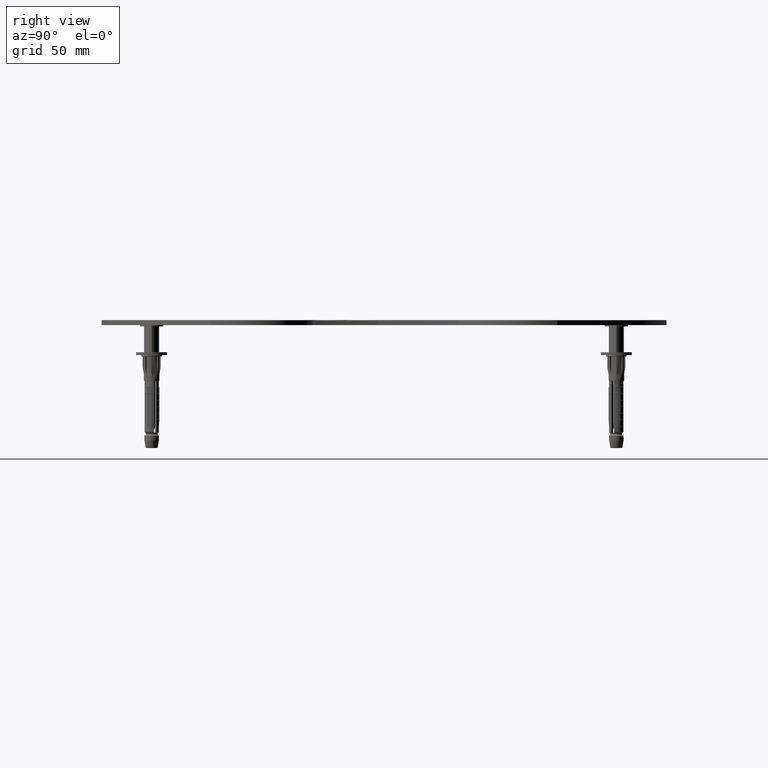
[diagram: clean part render]
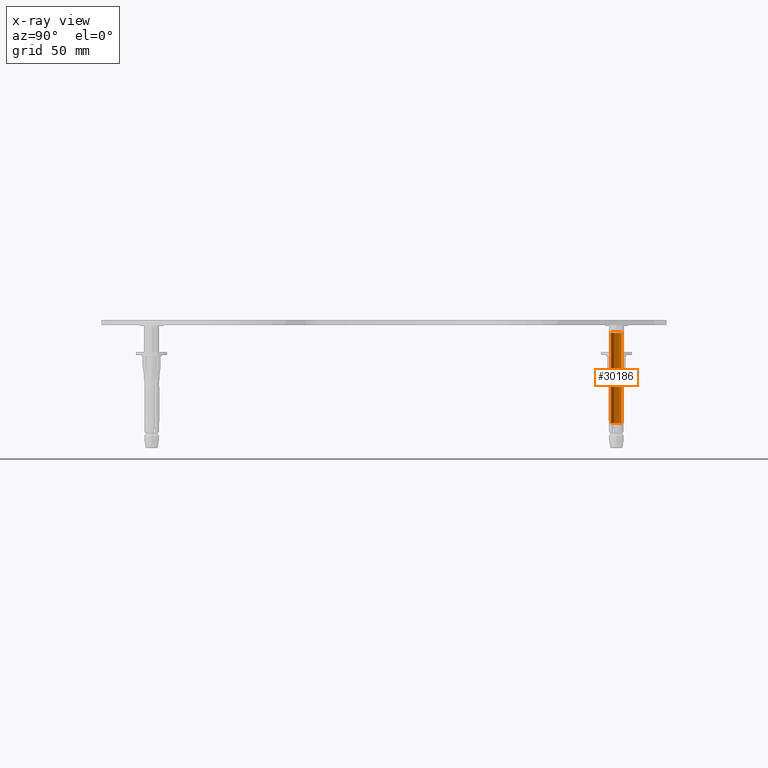
[diagram: x-ray — body ghosted, one internal face saturated and labeled with its STEP entity id]
A machine part, right view, then the same camera in x-ray: the body is ghosted and one INTERNAL B-rep face — a face not visible from any outside direction — is saturated and labeled: STEP entity #30186.
In plain terms, the highlighted cylindrical surface (edge-blend (fillet) strip) has radius 2 mm, axis along (-0, 0, -1).
Its self-contained STEP definition (entity closure, byte-faithful):
#144 = FACE_OUTER_BOUND ( 'NONE', #28852, .T. ) ;
#582 = CYLINDRICAL_SURFACE ( 'NONE', #25985, 1.999999999999995781 ) ;
#807 = CARTESIAN_POINT ( 'NONE',  ( -7.798966094169266648E-33, 1.999999999999995781, -35.40999999999999659 ) ) ;
#2513 = CIRCLE ( 'NONE', #6523, 1.999999999999995781 ) ;
#2608 = ORIENTED_EDGE ( 'NONE', *, *, #10006, .T. ) ;
#2811 = LINE ( 'NONE', #3482, #17550 ) ;
#3482 = CARTESIAN_POINT ( 'NONE',  ( 2.449293598294697047E-16, -1.999999999999995781, -39.99999999999997868 ) ) ;
#3553 = VERTEX_POINT ( 'NONE', #27630 ) ;
#3980 = CIRCLE ( 'NONE', #19637, 1.999999999999995781 ) ;
#4582 = VERTEX_POINT ( 'NONE', #807 ) ;
#6463 = EDGE_CURVE ( 'NONE', #4582, #18797, #2513, .T. ) ;
#6523 = AXIS2_PLACEMENT_3D ( 'NONE', #14853, #17887, #6603 ) ;
#6603 = DIRECTION ( 'NONE',  ( -3.899483047084641535E-33, 1.000000000000000000, 0.000000000000000000 ) ) ;
#7786 = CARTESIAN_POINT ( 'NONE',  ( 2.449293598294688665E-16, -1.999999999999995781, -35.40999999999999659 ) ) ;
#8908 = DIRECTION ( 'NONE',  ( 3.899483047084638798E-33, -1.000000000000000000, 0.000000000000000000 ) ) ;
#10006 = EDGE_CURVE ( 'NONE', #14008, #18797, #2811, .T. ) ;
#10414 = EDGE_CURVE ( 'NONE', #3553, #4582, #21174, .T. ) ;
#11180 = CARTESIAN_POINT ( 'NONE',  ( 0.000000000000000000, 0.000000000000000000, -39.99999999999997868 ) ) ;
#14008 = VERTEX_POINT ( 'NONE', #15904 ) ;
#14853 = CARTESIAN_POINT ( 'NONE',  ( 0.000000000000000000, 0.000000000000000000, -35.40999999999999659 ) ) ;
#15904 = CARTESIAN_POINT ( 'NONE',  ( 2.449293598294688665E-16, -1.999999999999995781, -0.5000000000000004441 ) ) ;
#17550 = VECTOR ( 'NONE', #18008, 1000.000000000000000 ) ;
#17887 = DIRECTION ( 'NONE',  ( 3.851859888774477727E-32, -1.530808498934208457E-17, -1.000000000000000000 ) ) ;
#18008 = DIRECTION ( 'NONE',  ( 3.851859888774477727E-32, -1.530808498934208457E-17, -1.000000000000000000 ) ) ;
#18106 = DIRECTION ( 'NONE',  ( -3.899483047084641535E-33, 1.000000000000000000, 0.000000000000000000 ) ) ;
#18797 = VERTEX_POINT ( 'NONE', #7786 ) ;
#19637 = AXIS2_PLACEMENT_3D ( 'NONE', #26479, #20661, #8908 ) ;
#20661 = DIRECTION ( 'NONE',  ( 3.851859888774477727E-32, -1.530808498934203527E-17, -1.000000000000000000 ) ) ;
#21174 = LINE ( 'NONE', #27866, #35929 ) ;
#23327 = ORIENTED_EDGE ( 'NONE', *, *, #10414, .F. ) ;
#24766 = DIRECTION ( 'NONE',  ( 3.851859888774477727E-32, -1.530808498934208457E-17, -1.000000000000000000 ) ) ;
#25985 = AXIS2_PLACEMENT_3D ( 'NONE', #11180, #28823, #18106 ) ;
#26479 = CARTESIAN_POINT ( 'NONE',  ( 0.000000000000000000, 0.000000000000000000, -0.5000000000000004441 ) ) ;
#27630 = CARTESIAN_POINT ( 'NONE',  ( -8.569414785745018362E-31, 1.999999999999995781, -0.5000000000000004441 ) ) ;
#27866 = CARTESIAN_POINT ( 'NONE',  ( -7.798966094169266648E-33, 1.999999999999995781, -39.99999999999997868 ) ) ;
#28823 = DIRECTION ( 'NONE',  ( 3.851859888774477727E-32, -1.530808498934208457E-17, -1.000000000000000000 ) ) ;
#28852 = EDGE_LOOP ( 'NONE', ( #30413, #2608, #32504, #23327 ) ) ;
#30186 = ADVANCED_FACE ( 'NONE', ( #144 ), #582, .T. ) ;
#30413 = ORIENTED_EDGE ( 'NONE', *, *, #37358, .T. ) ;
#32504 = ORIENTED_EDGE ( 'NONE', *, *, #6463, .F. ) ;
#35929 = VECTOR ( 'NONE', #24766, 1000.000000000000000 ) ;
#37358 = EDGE_CURVE ( 'NONE', #3553, #14008, #3980, .T. ) ;